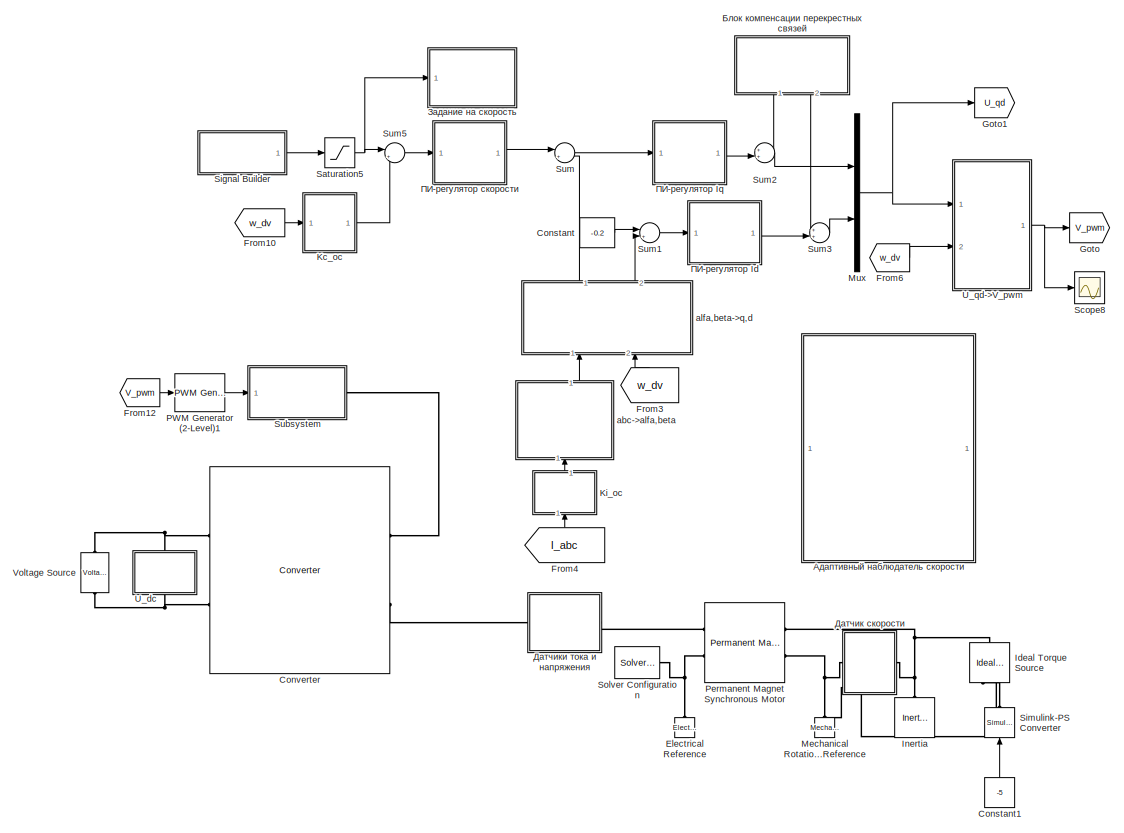
[diagram: root canvas - part 1/2, center side, full height]
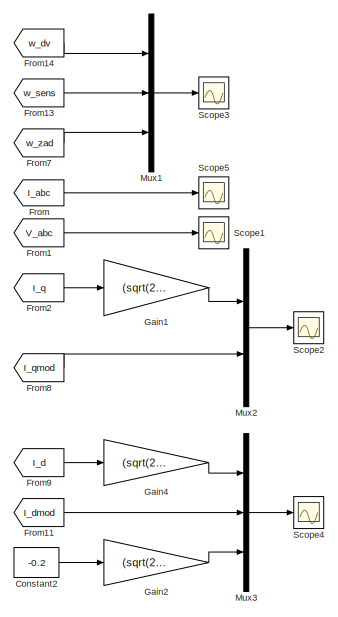
[diagram: root canvas - part 2/2, middle right region]
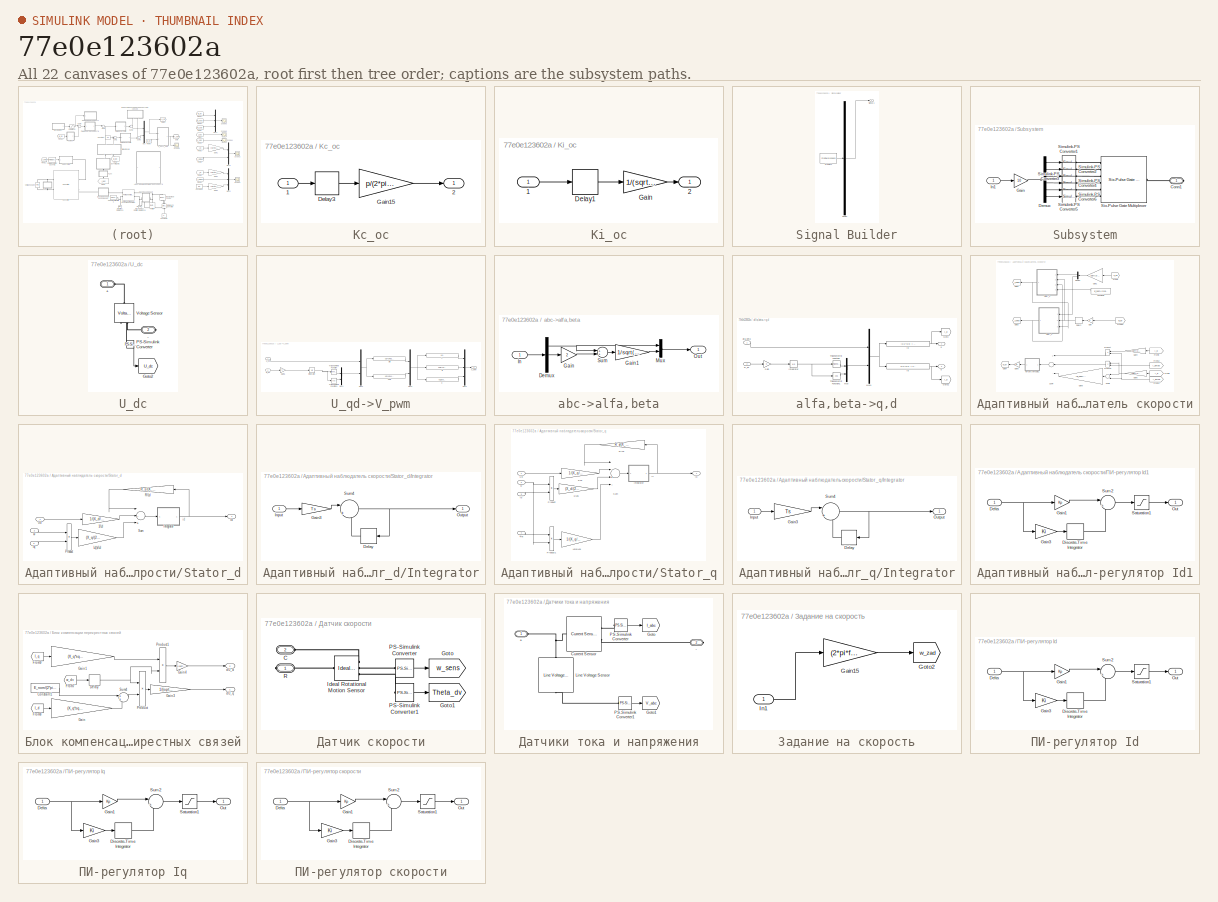
[diagram: thumbnail index - all 22 canvases of the model, root first then tree order]
MODEL slx_77e0e123602a
KIND model
CONFIG AbsTol = auto
CONFIG EnableMultiTasking = off
CONFIG FixedStep = Ts
CONFIG MaxStep = auto
CONFIG MinStep = auto
CONFIG RelTol = 1e-3
CONFIG SampleTimeConstraint = Unconstrained
CONFIG Solver = ode3
CONFIG SolverName = ode3
CONFIG StartTime = 0.0
CONFIG StopTime = 10
BLOCK [Constant] Constant
  Value = -0.2
BLOCK [Constant] Constant1
  Value = -5
BLOCK [Constant] Constant2
  Value = -0.2
BLOCK [Reference] Converter  REF=pe_lib/Semiconductors/Converter
  Ports = [0, 0, 0, 0, 0, 2, 2]
  SourceBlock = pe_lib/Semiconductors/Converter
  SourceProductBaseCode = PS
  SourceProductName = Simscape Electrical
  SourceType = Converter
BLOCK [Reference] Electrical Reference  REF=fl_lib/Electrical/Electrical Elements/Electrical Reference
  Ports = [0, 0, 0, 0, 0, 1]
  SourceBlock = fl_lib/Electrical/Electrical Elements/Electrical Reference
  SourceProductBaseCode = SS
  SourceProductName = Simscape
  SourceType = Electrical Reference
BLOCK [From] From
  GotoTag = I_abc
  TagVisibility = global
BLOCK [From] From1
  GotoTag = V_abc
  TagVisibility = global
BLOCK [From] From10
  GotoTag = w_dv
  TagVisibility = global
BLOCK [From] From11
  GotoTag = I_dmod
  TagVisibility = global
BLOCK [From] From12
  GotoTag = V_pwm
  TagVisibility = global
BLOCK [From] From13
  GotoTag = w_sens
  TagVisibility = global
BLOCK [From] From14
  GotoTag = w_dv
  TagVisibility = global
BLOCK [From] From2
  GotoTag = I_q
  TagVisibility = global
BLOCK [From] From3
  GotoTag = w_dv
  TagVisibility = global
BLOCK [From] From4
  GotoTag = I_abc
  TagVisibility = global
BLOCK [From] From6
  GotoTag = w_dv
  TagVisibility = global
BLOCK [From] From7
  GotoTag = w_zad
  TagVisibility = global
BLOCK [From] From8
  GotoTag = I_qmod
  TagVisibility = global
BLOCK [From] From9
  GotoTag = I_d
  TagVisibility = global
BLOCK [Gain] Gain1
  Gain = (sqrt(2)*I_nom)
  OutDataTypeStr = Inherit: Inherit via internal rule
  ParamDataTypeStr = Inherit: Inherit via internal rule
  SaturateOnIntegerOverflow = off
BLOCK [Gain] Gain2
  Gain = (sqrt(2)*I_nom)
  OutDataTypeStr = Inherit: Inherit via internal rule
  ParamDataTypeStr = Inherit: Inherit via internal rule
  SaturateOnIntegerOverflow = off
BLOCK [Gain] Gain4
  Gain = (sqrt(2)*I_nom)
  OutDataTypeStr = Inherit: Inherit via internal rule
  ParamDataTypeStr = Inherit: Inherit via internal rule
  SaturateOnIntegerOverflow = off
BLOCK [Goto] Goto
  GotoTag = V_pwm
  TagVisibility = global
BLOCK [Goto] Goto1
  GotoTag = U_qd
  TagVisibility = global
BLOCK [Reference] Ideal Torque Source  REF=fl_lib/Mechanical/Mechanical Sources/Ideal Torque Source
  Ports = [0, 0, 0, 0, 0, 1, 2]
  SourceBlock = fl_lib/Mechanical/Mechanical Sources/Ideal Torque Source
  SourceProductBaseCode = SS
  SourceProductName = Simscape
  SourceType = Ideal Torque Source
BLOCK [Reference] Inertia  REF=fl_lib/Mechanical/Rotational Elements/Inertia
  Ports = [0, 0, 0, 0, 0, 1]
  SourceBlock = fl_lib/Mechanical/Rotational Elements/Inertia
  SourceProductBaseCode = SS
  SourceProductName = Simscape
  SourceType = Inertia
BLOCK [SubSystem] Kc_oc
  Ports = [1, 1]
  RequestExecContextInheritance = off
BLOCK [Inport] Kc_oc/1
  IconDisplay = Port number
BLOCK [Outport] Kc_oc/2
  IconDisplay = Port number
BLOCK [Delay] Kc_oc/Delay3
  DelayLength = 1
  InitialCondition = 0
  InputPortMap = u0
  Ports = [1, 1]
BLOCK [Gain] Kc_oc/Gain15
  Gain = p/(2*pi*f_nom)
  OutDataTypeStr = Inherit: Inherit via internal rule
  ParamDataTypeStr = Inherit: Inherit via internal rule
  SaturateOnIntegerOverflow = off
BLOCK [SubSystem] Ki_oc
  Ports = [1, 1]
  RequestExecContextInheritance = off
BLOCK [Inport] Ki_oc/1
  IconDisplay = Port number
BLOCK [Outport] Ki_oc/2
  IconDisplay = Port number
BLOCK [Delay] Ki_oc/Delay1
  DelayLength = 1
  InitialCondition = 0
  InputPortMap = u0
  Ports = [1, 1]
BLOCK [Gain] Ki_oc/Gain
  Gain = 1/(sqrt(2)*I_nom)
  OutDataTypeStr = Inherit: Inherit via internal rule
  ParamDataTypeStr = Inherit: Inherit via internal rule
  SaturateOnIntegerOverflow = off
BLOCK [Reference] Mechanical Rotational Reference  REF=fl_lib/Mechanical/Rotational Elements/Mechanical
Rotational Reference
  Ports = [0, 0, 0, 0, 0, 1]
  SourceBlock = fl_lib/Mechanical/Rotational Elements/Mechanical\nRotational Reference
  SourceProductBaseCode = SS
  SourceProductName = Simscape
  SourceType = Mechanical\nRotational Reference
BLOCK [Mux] Mux
  DisplayOption = bar
  Inputs = 2
  Ports = [2, 1]
BLOCK [Mux] Mux1
  DisplayOption = bar
  Inputs = 3
  Ports = [3, 1]
BLOCK [Mux] Mux2
  DisplayOption = bar
  Inputs = 2
  Ports = [2, 1]
BLOCK [Mux] Mux3
  DisplayOption = bar
  Inputs = 3
  Ports = [3, 1]
BLOCK [Reference] PWM Generator (2-Level)1  REF=powerlib_meascontrol/Pulse & Signal
Generators/PWM Generator
(2-Level)
  Ports = [1, 1]
  SourceBlock = powerlib_meascontrol/Pulse & Signal\nGenerators/PWM Generator\n(2-Level)
  SourceProductBaseCode = PS
  SourceProductName = Simscape Electrical
  SourceType = PWM Generator (2-Level)
BLOCK [Reference] Permanent Magnet Synchronous Motor  REF=pe_lib/Machines/Permanent Magnet
Rotor/Permanent Magnet
Synchronous Motor
  Ports = [0, 0, 0, 0, 0, 2, 2]
  SourceBlock = pe_lib/Machines/Permanent Magnet\nRotor/Permanent Magnet\nSynchronous Motor
  SourceProductBaseCode = PS
  SourceProductName = Simscape Electrical
  SourceType = Permanent Magnet\nSynchronous Motor
BLOCK [Saturate] Saturation5
  InputPortMap = u0
  LowerLimit = -1
  Ports = [1, 1]
  UpperLimit = 1
BLOCK [Scope] Scope1
  Floating = off
  NumInputPorts = 1
  Ports = [1]
  ScopeSpecificationString = Simulink.scopes.TimeScopeBlockCfg('CurrentConfiguration', extmgr.ConfigurationSet(extmgr.Configuration('Core','General UI',true),extmgr.Configuration('Core','Source UI',true),extmgr.Configuration('Sources','WiredSimulink',true,'DataLoggingVariableName','ScopeData3'),extmgr.Configuration('Visuals','Time Domain',true,'SerializedDisplays',{struct('MinYLimReal','-675.07528','MaxYLimReal','675.07491','...<+1522ch>
BLOCK [Scope] Scope2
  Floating = off
  NumInputPorts = 1
  Ports = [1]
  ScopeSpecificationString = Simulink.scopes.TimeScopeBlockCfg('CurrentConfiguration', extmgr.ConfigurationSet(extmgr.Configuration('Core','General UI',true,'FigureColor',[1 1 1]),extmgr.Configuration('Core','Source UI',true),extmgr.Configuration('Sources','WiredSimulink',true,'DataLoggingVariableName','ScopeData1'),extmgr.Configuration('Visuals','Time Domain',true,'SerializedDisplays',{struct('MinYLimReal','-14.82485','MaxYL...<+1759ch>
BLOCK [Scope] Scope3
  Floating = off
  NumInputPorts = 1
  Ports = [1]
  ScopeSpecificationString = Simulink.scopes.TimeScopeBlockCfg('CurrentConfiguration', extmgr.ConfigurationSet(extmgr.Configuration('Core','General UI',true,'FigureColor',[1 1 1]),extmgr.Configuration('Core','Source UI',true),extmgr.Configuration('Sources','WiredSimulink',true,'DataLoggingVariableName','ScopeData1'),extmgr.Configuration('Visuals','Time Domain',true,'SerializedDisplays',{struct('MinYLimReal','-279.33541','MaxY...<+1839ch>
BLOCK [Scope] Scope4
  Floating = off
  NumInputPorts = 1
  Ports = [1]
  ScopeSpecificationString = Simulink.scopes.TimeScopeBlockCfg('CurrentConfiguration', extmgr.ConfigurationSet(extmgr.Configuration('Core','General UI',true,'FigureColor',[1 1 1]),extmgr.Configuration('Core','Source UI',true),extmgr.Configuration('Sources','WiredSimulink',true,'DataLoggingVariableName','ScopeData2'),extmgr.Configuration('Visuals','Time Domain',true,'SerializedDisplays',{struct('MinYLimReal','-61.41893','MaxYL...<+1751ch>
BLOCK [Scope] Scope5
  Floating = off
  NumInputPorts = 1
  Ports = [1]
  ScopeSpecificationString = Simulink.scopes.TimeScopeBlockCfg('CurrentConfiguration', extmgr.ConfigurationSet(extmgr.Configuration('Core','General UI',true,'FigureColor',[1 1 1]),extmgr.Configuration('Core','Source UI',true),extmgr.Configuration('Sources','WiredSimulink',true,'DataLoggingVariableName','ScopeData3'),extmgr.Configuration('Visuals','Time Domain',true,'SerializedDisplays',{struct('MinYLimReal','-112.36384','MaxY...<+1826ch>
BLOCK [Scope] Scope8
  Floating = off
  NumInputPorts = 1
  Ports = [1]
  ScopeSpecificationString = Simulink.scopes.TimeScopeBlockCfg('CurrentConfiguration', extmgr.ConfigurationSet(extmgr.Configuration('Core','General UI',true),extmgr.Configuration('Core','Source UI',true),extmgr.Configuration('Sources','WiredSimulink',true,'DataLoggingVariableName','ScopeData7'),extmgr.Configuration('Visuals','Time Domain',true,'SerializedDisplays',{struct('MinYLimReal','-1.02661','MaxYLimReal','0.86767','YLab...<+1475ch>
BLOCK [SubSystem] Signal Builder
  ClipboardFcn = sigbuilder_block('clipboard');
  CloseFcn = sigbuilder_block('close');
  ContinueFcn = sigbuilder_block('continue');
  CopyFcn = sigbuilder_block('copy');
  DeleteFcn = sigbuilder_block('delete');
  LoadFcn = sigbuilder_block('load');
  MaskHideContents = on
  ModelCloseFcn = sigbuilder_block('modelClose');
  NameChangeFcn = sigbuilder_block('namechange');
  OpenFcn = sigbuilder_block('open',[437.6 199.2 550.4 400 ]);
  PauseFcn = sigbuilder_block('pause');
  Ports = [0, 1]
  PreSaveFcn = sigbuilder_block('preSave');
  RequestExecContextInheritance = off
  StartFcn = sigbuilder_block('start');
  StopFcn = sigbuilder_block('stop');
  Tag = STV Subsys
BLOCK [Demux] Signal Builder/Demux
  Outputs = 1
  Ports = [1, 1]
  Tag = STV Demux
BLOCK [FromWorkspace] Signal Builder/FromWs
  SampleTime = 0
  Tag = STV FromWs
  VariableName = tuvar
  ZeroCross = on
BLOCK [Outport] Signal Builder/Signal 1
  IconDisplay = Port number
  Tag = STV Outport
BLOCK [Reference] Simulink-PS Converter  REF=nesl_utility/Simulink-PS
Converter
  Ports = [1, 0, 0, 0, 0, 0, 1]
  SourceBlock = nesl_utility/Simulink-PS\nConverter
  SourceProductBaseCode = SS
  SourceProductName = Simscape
  SourceType = Simulink-PS\nConverter
BLOCK [Reference] Solver Configuration  REF=nesl_utility/Solver
Configuration
  Ports = [0, 0, 0, 0, 0, 0, 1]
  SourceBlock = nesl_utility/Solver\nConfiguration
  SourceProductBaseCode = SS
  SourceProductName = Simscape
  SourceType = Solver\nConfiguration
BLOCK [SubSystem] Subsystem
  Ports = [1, 0, 0, 0, 0, 0, 1]
  RequestExecContextInheritance = off
BLOCK [PMIOPort] Subsystem/Conn1
  Side = Right
BLOCK [Demux] Subsystem/Demux
  DisplayOption = bar
  Outputs = 6
  Ports = [1, 6]
BLOCK [Gain] Subsystem/Gain
  Gain = 10
  OutDataTypeStr = Inherit: Inherit via internal rule
  ParamDataTypeStr = Inherit: Inherit via internal rule
  SaturateOnIntegerOverflow = off
BLOCK [Inport] Subsystem/In1
  IconDisplay = Port number
BLOCK [Reference] Subsystem/Simulink-PS Converter1  REF=nesl_utility/Simulink-PS
Converter
  Ports = [1, 0, 0, 0, 0, 0, 1]
  SourceBlock = nesl_utility/Simulink-PS\nConverter
  SourceProductBaseCode = SS
  SourceProductName = Simscape
  SourceType = Simulink-PS\nConverter
BLOCK [Reference] Subsystem/Simulink-PS Converter2  REF=nesl_utility/Simulink-PS
Converter
  Ports = [1, 0, 0, 0, 0, 0, 1]
  SourceBlock = nesl_utility/Simulink-PS\nConverter
  SourceProductBaseCode = SS
  SourceProductName = Simscape
  SourceType = Simulink-PS\nConverter
BLOCK [Reference] Subsystem/Simulink-PS Converter3  REF=nesl_utility/Simulink-PS
Converter
  Ports = [1, 0, 0, 0, 0, 0, 1]
  SourceBlock = nesl_utility/Simulink-PS\nConverter
  SourceProductBaseCode = SS
  SourceProductName = Simscape
  SourceType = Simulink-PS\nConverter
BLOCK [Reference] Subsystem/Simulink-PS Converter4  REF=nesl_utility/Simulink-PS
Converter
  Ports = [1, 0, 0, 0, 0, 0, 1]
  SourceBlock = nesl_utility/Simulink-PS\nConverter
  SourceProductBaseCode = SS
  SourceProductName = Simscape
  SourceType = Simulink-PS\nConverter
BLOCK [Reference] Subsystem/Simulink-PS Converter5  REF=nesl_utility/Simulink-PS
Converter
  Ports = [1, 0, 0, 0, 0, 0, 1]
  SourceBlock = nesl_utility/Simulink-PS\nConverter
  SourceProductBaseCode = SS
  SourceProductName = Simscape
  SourceType = Simulink-PS\nConverter
BLOCK [Reference] Subsystem/Simulink-PS Converter6  REF=nesl_utility/Simulink-PS
Converter
  Ports = [1, 0, 0, 0, 0, 0, 1]
  SourceBlock = nesl_utility/Simulink-PS\nConverter
  SourceProductBaseCode = SS
  SourceProductName = Simscape
  SourceType = Simulink-PS\nConverter
BLOCK [Reference] Subsystem/Six-Pulse Gate Multiplexer  REF=pe_lib/Semiconductors/Six-Pulse Gate
Multiplexer
  Ports = [0, 0, 0, 0, 0, 6, 1]
  SourceBlock = pe_lib/Semiconductors/Six-Pulse Gate\nMultiplexer
  SourceProductBaseCode = PS
  SourceProductName = Simscape Electrical
  SourceType = Six-Pulse Gate\nMultiplexer
BLOCK [Sum] Sum
  IconShape = round
  InputSameDT = off
  Inputs = |+-
  OutDataTypeStr = Inherit: Inherit via internal rule
  Ports = [2, 1]
  SaturateOnIntegerOverflow = off
BLOCK [Sum] Sum1
  IconShape = round
  InputSameDT = off
  Inputs = |+-
  OutDataTypeStr = Inherit: Inherit via internal rule
  Ports = [2, 1]
  SaturateOnIntegerOverflow = off
BLOCK [Sum] Sum2
  IconShape = round
  InputSameDT = off
  Inputs = ++|
  OutDataTypeStr = Inherit: Inherit via internal rule
  Ports = [2, 1]
  SaturateOnIntegerOverflow = off
BLOCK [Sum] Sum3
  IconShape = round
  InputSameDT = off
  Inputs = ++|
  OutDataTypeStr = Inherit: Inherit via internal rule
  Ports = [2, 1]
  SaturateOnIntegerOverflow = off
BLOCK [Sum] Sum5
  IconShape = round
  InputSameDT = off
  Inputs = |+-
  OutDataTypeStr = Inherit: Inherit via internal rule
  Ports = [2, 1]
  SaturateOnIntegerOverflow = off
BLOCK [SubSystem] U_dc
  Ports = [0, 0, 0, 0, 0, 1, 1]
  RequestExecContextInheritance = off
BLOCK [PMIOPort] U_dc/+ 
  Side = Left
BLOCK [PMIOPort] U_dc/- 
  Port = 2
  Side = Right
BLOCK [Goto] U_dc/Goto2
  GotoTag = U_dc
  TagVisibility = global
BLOCK [Reference] U_dc/PS-Simulink Converter  REF=nesl_utility/PS-Simulink
Converter
  Ports = [0, 1, 0, 0, 0, 1]
  SourceBlock = nesl_utility/PS-Simulink\nConverter
  SourceProductBaseCode = SS
  SourceProductName = Simscape
  SourceType = PS-Simulink\nConverter
BLOCK [Reference] U_dc/Voltage Sensor  REF=fl_lib/Electrical/Electrical Sensors/Voltage Sensor
  Ports = [0, 0, 0, 0, 0, 1, 2]
  SourceBlock = fl_lib/Electrical/Electrical Sensors/Voltage Sensor
  SourceProductBaseCode = SS
  SourceProductName = Simscape
  SourceType = Voltage Sensor
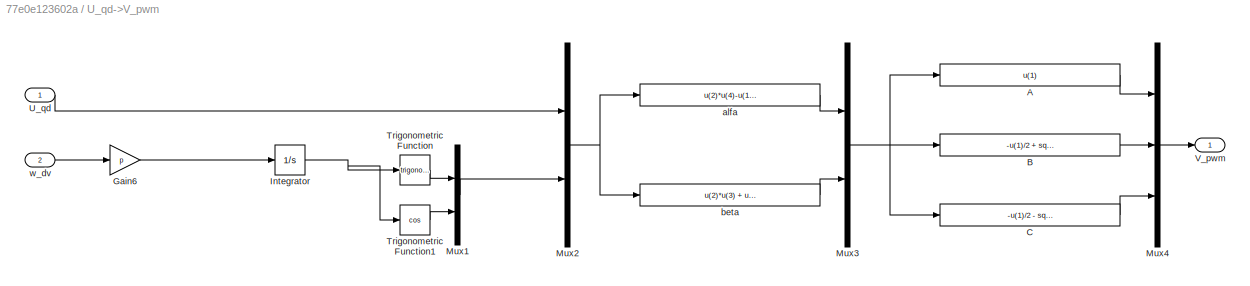
BLOCK [SubSystem] U_qd->V_pwm
  Ports = [2, 1]
  RequestExecContextInheritance = off
BLOCK [Fcn] U_qd->V_pwm/A
  Expr = u(1)
BLOCK [Fcn] U_qd->V_pwm/B
  Expr = -u(1)/2  + sqrt(3)*u(2)/2
BLOCK [Gain] U_qd->V_pwm/Gain6
  Gain = p
  OutDataTypeStr = Inherit: Inherit via internal rule
  ParamDataTypeStr = Inherit: Inherit via internal rule
  SaturateOnIntegerOverflow = off
BLOCK [Integrator] U_qd->V_pwm/Integrator
  Ports = [1, 1]
BLOCK [Mux] U_qd->V_pwm/Mux1
  DisplayOption = bar
  Inputs = 2
  Ports = [2, 1]
BLOCK [Mux] U_qd->V_pwm/Mux2
  DisplayOption = bar
  Inputs = 2
  Ports = [2, 1]
BLOCK [Mux] U_qd->V_pwm/Mux3
  DisplayOption = bar
  Inputs = 2
  Ports = [2, 1]
BLOCK [Mux] U_qd->V_pwm/Mux4
  DisplayOption = bar
  Inputs = 3
  Ports = [3, 1]
BLOCK [Trigonometry] U_qd->V_pwm/Trigonometric Function
  Ports = [1, 1]
BLOCK [Trigonometry] U_qd->V_pwm/Trigonometric Function1
  Operator = cos
  Ports = [1, 1]
BLOCK [Inport] U_qd->V_pwm/U_qd
  IconDisplay = Port number
BLOCK [Outport] U_qd->V_pwm/V_pwm
  IconDisplay = Port number
BLOCK [Fcn] U_qd->V_pwm/alfa 
  Expr = u(2)*u(4)-u(1)*u(3)
BLOCK [Fcn] U_qd->V_pwm/beta
  Expr = u(2)*u(3) + u(1)*u(4)
BLOCK [Inport] U_qd->V_pwm/w_dv
  IconDisplay = Port number
  Port = 2
BLOCK [Fcn] U_qd->V_pwm/С
  Expr = -u(1)/2  - sqrt(3)*u(2)/2
BLOCK [Reference] Voltage Source  REF=elec_lib/Sources/Voltage Source
  Ports = [0, 0, 0, 0, 0, 1, 1]
  SourceBlock = elec_lib/Sources/Voltage Source
  SourceProductBaseCode = SN
  SourceProductName = Simscape Electronics
  SourceType = Voltage Source
BLOCK [SubSystem] abc->alfa,beta
  Ports = [1, 1]
  RequestExecContextInheritance = off
  ShowPortLabels = FromPortBlockName
BLOCK [Demux] abc->alfa,beta/Demux
  DisplayOption = bar
  Outputs = 3
  Ports = [1, 3]
BLOCK [Gain] abc->alfa,beta/Gain
  Gain = 2
  OutDataTypeStr = Inherit: Inherit via internal rule
  ParamDataTypeStr = Inherit: Inherit via internal rule
  SaturateOnIntegerOverflow = off
BLOCK [Gain] abc->alfa,beta/Gain1
  Gain = 1/sqrt(3)
  OutDataTypeStr = Inherit: Inherit via internal rule
  ParamDataTypeStr = Inherit: Inherit via internal rule
  SaturateOnIntegerOverflow = off
BLOCK [Inport] abc->alfa,beta/In
  IconDisplay = Port number
BLOCK [Mux] abc->alfa,beta/Mux
  DisplayOption = bar
  Inputs = 2
  Ports = [2, 1]
BLOCK [Outport] abc->alfa,beta/Out
  IconDisplay = Port number
BLOCK [Sum] abc->alfa,beta/Sum
  InputSameDT = off
  OutDataTypeStr = Inherit: Inherit via internal rule
  Ports = [2, 1]
  SaturateOnIntegerOverflow = off
BLOCK [SubSystem] alfa,beta->q,d
  Ports = [2, 2]
  RequestExecContextInheritance = off
BLOCK [Gain] alfa,beta->q,d/Gain
  Gain = p
  OutDataTypeStr = Inherit: Inherit via internal rule
  ParamDataTypeStr = Inherit: Inherit via internal rule
  SaturateOnIntegerOverflow = off
BLOCK [Goto] alfa,beta->q,d/Goto
  GotoTag = I_q
  TagVisibility = global
BLOCK [Goto] alfa,beta->q,d/Goto1
  GotoTag = I_d
  TagVisibility = global
BLOCK [Fcn] alfa,beta->q,d/Id 
  Expr = u(1)*u(4) + u(2)*u(3)
BLOCK [Integrator] alfa,beta->q,d/Integrator
  Ports = [1, 1]
BLOCK [Fcn] alfa,beta->q,d/Iq
  Expr = -u(1)*u(3) + u(2)*u(4)
BLOCK [Mux] alfa,beta->q,d/Mux
  DisplayOption = bar
  Inputs = 2
  Ports = [2, 1]
BLOCK [Mux] alfa,beta->q,d/Mux1
  DisplayOption = bar
  Inputs = 2
  Ports = [2, 1]
BLOCK [Trigonometry] alfa,beta->q,d/Trigonometric Function
  Ports = [1, 1]
BLOCK [Trigonometry] alfa,beta->q,d/Trigonometric Function1
  Operator = cos
  Ports = [1, 1]
BLOCK [Inport] alfa,beta->q,d/alfa,beta
  IconDisplay = Port number
BLOCK [Outport] alfa,beta->q,d/d
  IconDisplay = Port number
  Port = 2
BLOCK [Outport] alfa,beta->q,d/q 
  IconDisplay = Port number
BLOCK [Inport] alfa,beta->q,d/w_dv
  IconDisplay = Port number
  Port = 2
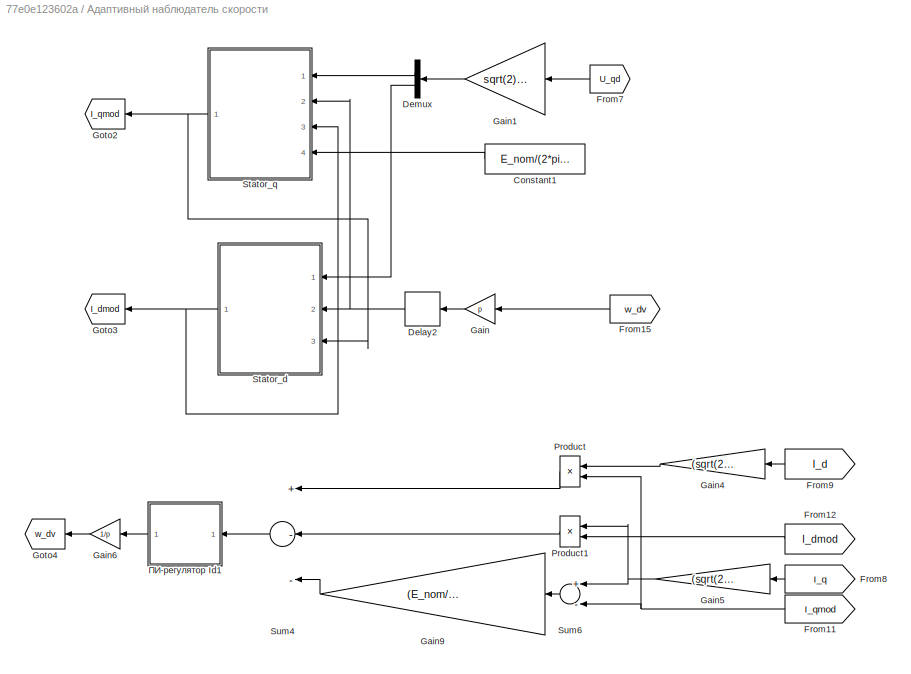
BLOCK [SubSystem] Адаптивный наблюдатель скорости
  Ports = []
  RequestExecContextInheritance = off
BLOCK [Constant] Адаптивный наблюдатель скорости/Constant1
  Value = E_nom/(2*pi*f_nom)
BLOCK [Delay] Адаптивный наблюдатель скорости/Delay2
  DelayLength = 1
  InitialCondition = 0
  InputPortMap = u0
  Ports = [1, 1]
BLOCK [Demux] Адаптивный наблюдатель скорости/Demux
  DisplayOption = bar
  Outputs = 2
  Ports = [1, 2]
BLOCK [From] Адаптивный наблюдатель скорости/From11
  GotoTag = I_qmod
  TagVisibility = global
BLOCK [From] Адаптивный наблюдатель скорости/From12
  GotoTag = I_dmod
  TagVisibility = global
BLOCK [From] Адаптивный наблюдатель скорости/From15
  GotoTag = w_dv
  TagVisibility = global
BLOCK [From] Адаптивный наблюдатель скорости/From7
  GotoTag = U_qd
  TagVisibility = global
BLOCK [From] Адаптивный наблюдатель скорости/From8
  GotoTag = I_q
  TagVisibility = global
BLOCK [From] Адаптивный наблюдатель скорости/From9
  GotoTag = I_d
  TagVisibility = global
BLOCK [Gain] Адаптивный наблюдатель скорости/Gain
  Gain = p
  OutDataTypeStr = Inherit: Inherit via internal rule
  ParamDataTypeStr = Inherit: Inherit via internal rule
  SaturateOnIntegerOverflow = off
BLOCK [Gain] Адаптивный наблюдатель скорости/Gain1
  Gain = sqrt(2)*U_nom
  OutDataTypeStr = Inherit: Inherit via internal rule
  ParamDataTypeStr = Inherit: Inherit via internal rule
  SaturateOnIntegerOverflow = off
BLOCK [Gain] Адаптивный наблюдатель скорости/Gain4
  Gain = (sqrt(2)*I_nom)
  OutDataTypeStr = Inherit: Inherit via internal rule
  ParamDataTypeStr = Inherit: Inherit via internal rule
  SaturateOnIntegerOverflow = off
BLOCK [Gain] Адаптивный наблюдатель скорости/Gain5
  Gain = (sqrt(2)*I_nom)
  OutDataTypeStr = Inherit: Inherit via internal rule
  ParamDataTypeStr = Inherit: Inherit via internal rule
  SaturateOnIntegerOverflow = off
BLOCK [Gain] Адаптивный наблюдатель скорости/Gain6
  Gain = 1/p
  OutDataTypeStr = Inherit: Inherit via internal rule
  ParamDataTypeStr = Inherit: Inherit via internal rule
  SaturateOnIntegerOverflow = off
BLOCK [Gain] Адаптивный наблюдатель скорости/Gain9
  Gain = (E_nom/(2*pi*f_nom))/(X_q/(2*pi*f_nom))
  OutDataTypeStr = Inherit: Inherit via internal rule
  ParamDataTypeStr = Inherit: Inherit via internal rule
  SaturateOnIntegerOverflow = off
BLOCK [Goto] Адаптивный наблюдатель скорости/Goto2
  GotoTag = I_qmod
  TagVisibility = global
BLOCK [Goto] Адаптивный наблюдатель скорости/Goto3
  GotoTag = I_dmod
  TagVisibility = global
BLOCK [Goto] Адаптивный наблюдатель скорости/Goto4
  GotoTag = w_dv
  TagVisibility = global
BLOCK [Product] Адаптивный наблюдатель скорости/Product
  InputSameDT = off
  OutDataTypeStr = Inherit: Inherit via internal rule
  Ports = [2, 1]
  RndMeth = Floor
  SaturateOnIntegerOverflow = off
BLOCK [Product] Адаптивный наблюдатель скорости/Product1
  InputSameDT = off
  OutDataTypeStr = Inherit: Inherit via internal rule
  Ports = [2, 1]
  RndMeth = Floor
  SaturateOnIntegerOverflow = off
BLOCK [SubSystem] Адаптивный наблюдатель скорости/Stator_d
  Ports = [3, 1]
  RequestExecContextInheritance = off
BLOCK [Gain] Адаптивный наблюдатель скорости/Stator_d/1//Ld
  Gain = 1/(X_d/(2*pi*f_nom))
  OutDataTypeStr = Inherit: Inherit via internal rule
  ParamDataTypeStr = Inherit: Inherit via internal rule
  SaturateOnIntegerOverflow = off
BLOCK [Outport] Адаптивный наблюдатель скорости/Stator_d/Id
  IconDisplay = Port number
BLOCK [SubSystem] Адаптивный наблюдатель скорости/Stator_d/Integrator
  Ports = [1, 1]
  RequestExecContextInheritance = off
BLOCK [Delay] Адаптивный наблюдатель скорости/Stator_d/Integrator/Delay
  DelayLength = 1
  InitialCondition = 0
  InputPortMap = u0
  Ports = [1, 1]
BLOCK [Gain] Адаптивный наблюдатель скорости/Stator_d/Integrator/Gain3
  Gain = Ts
  OutDataTypeStr = Inherit: Inherit via internal rule
  ParamDataTypeStr = Inherit: Inherit via internal rule
  SaturateOnIntegerOverflow = off
BLOCK [Inport] Адаптивный наблюдатель скорости/Stator_d/Integrator/Input
  IconDisplay = Port number
BLOCK [Outport] Адаптивный наблюдатель скорости/Stator_d/Integrator/Output
  IconDisplay = Port number
BLOCK [Sum] Адаптивный наблюдатель скорости/Stator_d/Integrator/Sum4
  IconShape = round
  InputSameDT = off
  Inputs = |++
  OutDataTypeStr = Inherit: Inherit via internal rule
  Ports = [2, 1]
  SaturateOnIntegerOverflow = off
BLOCK [Inport] Адаптивный наблюдатель скорости/Stator_d/Iq 
  IconDisplay = Port number
  Port = 3
BLOCK [Gain] Адаптивный наблюдатель скорости/Stator_d/Lq*p//Ld
  Gain = (X_q/(2*pi*f_nom))/(X_d/(2*pi*f_nom))
  OutDataTypeStr = Inherit: Inherit via internal rule
  ParamDataTypeStr = Inherit: Inherit via internal rule
  SaturateOnIntegerOverflow = off
BLOCK [Product] Адаптивный наблюдатель скорости/Stator_d/Product
  InputSameDT = off
  OutDataTypeStr = Inherit: Inherit via internal rule
  Ports = [2, 1]
  RndMeth = Floor
  SaturateOnIntegerOverflow = off
BLOCK [Gain] Адаптивный наблюдатель скорости/Stator_d/R//Ld
  Gain = R_s/(X_d/(2*pi*f_nom))
  OutDataTypeStr = Inherit: Inherit via internal rule
  ParamDataTypeStr = Inherit: Inherit via internal rule
  SaturateOnIntegerOverflow = off
BLOCK [Sum] Адаптивный наблюдатель скорости/Stator_d/Sum
  InputSameDT = off
  Inputs = |-++
  OutDataTypeStr = Inherit: Inherit via internal rule
  Ports = [3, 1]
  SaturateOnIntegerOverflow = off
BLOCK [Inport] Адаптивный наблюдатель скорости/Stator_d/Ud 
  IconDisplay = Port number
BLOCK [Inport] Адаптивный наблюдатель скорости/Stator_d/w 
  IconDisplay = Port number
  Port = 2
BLOCK [SubSystem] Адаптивный наблюдатель скорости/Stator_q
  Ports = [4, 1]
  RequestExecContextInheritance = off
BLOCK [Gain] Адаптивный наблюдатель скорости/Stator_q/1//Lq
  Gain = 1/(X_q/(2*pi*f_nom))
  OutDataTypeStr = Inherit: Inherit via internal rule
  ParamDataTypeStr = Inherit: Inherit via internal rule
  SaturateOnIntegerOverflow = off
BLOCK [Gain] Адаптивный наблюдатель скорости/Stator_q/1//Lq1
  Gain = (X_d/(2*pi*f_nom))/(X_q/(2*pi*f_nom))
  OutDataTypeStr = Inherit: Inherit via internal rule
  ParamDataTypeStr = Inherit: Inherit via internal rule
  SaturateOnIntegerOverflow = off
BLOCK [Inport] Адаптивный наблюдатель скорости/Stator_q/Id 
  IconDisplay = Port number
  Port = 3
BLOCK [SubSystem] Адаптивный наблюдатель скорости/Stator_q/Integrator
  Ports = [1, 1]
  RequestExecContextInheritance = off
BLOCK [Delay] Адаптивный наблюдатель скорости/Stator_q/Integrator/Delay
  DelayLength = 1
  InitialCondition = 0
  InputPortMap = u0
  Ports = [1, 1]
BLOCK [Gain] Адаптивный наблюдатель скорости/Stator_q/Integrator/Gain3
  Gain = Ts
  OutDataTypeStr = Inherit: Inherit via internal rule
  ParamDataTypeStr = Inherit: Inherit via internal rule
  SaturateOnIntegerOverflow = off
BLOCK [Inport] Адаптивный наблюдатель скорости/Stator_q/Integrator/Input
  IconDisplay = Port number
BLOCK [Outport] Адаптивный наблюдатель скорости/Stator_q/Integrator/Output
  IconDisplay = Port number
BLOCK [Sum] Адаптивный наблюдатель скорости/Stator_q/Integrator/Sum4
  IconShape = round
  InputSameDT = off
  Inputs = |++
  OutDataTypeStr = Inherit: Inherit via internal rule
  Ports = [2, 1]
  SaturateOnIntegerOverflow = off
BLOCK [Outport] Адаптивный наблюдатель скорости/Stator_q/Iq
  IconDisplay = Port number
BLOCK [Gain] Адаптивный наблюдатель скорости/Stator_q/Ld*p//Lq1
  Gain = 1/(X_q/(2*pi*f_nom))
  OutDataTypeStr = Inherit: Inherit via internal rule
  ParamDataTypeStr = Inherit: Inherit via internal rule
  SaturateOnIntegerOverflow = off
BLOCK [Product] Адаптивный наблюдатель скорости/Stator_q/Product
  InputSameDT = off
  OutDataTypeStr = Inherit: Inherit via internal rule
  Ports = [2, 1]
  RndMeth = Floor
  SaturateOnIntegerOverflow = off
BLOCK [Product] Адаптивный наблюдатель скорости/Stator_q/Product1
  InputSameDT = off
  OutDataTypeStr = Inherit: Inherit via internal rule
  Ports = [2, 1]
  RndMeth = Floor
  SaturateOnIntegerOverflow = off
BLOCK [Gain] Адаптивный наблюдатель скорости/Stator_q/R//Lq
  Gain = R_s/(X_q/(2*pi*f_nom))
  OutDataTypeStr = Inherit: Inherit via internal rule
  ParamDataTypeStr = Inherit: Inherit via internal rule
  SaturateOnIntegerOverflow = off
BLOCK [Sum] Адаптивный наблюдатель скорости/Stator_q/Sum
  InputSameDT = off
  Inputs = |-+--
  OutDataTypeStr = Inherit: Inherit via internal rule
  Ports = [4, 1]
  SaturateOnIntegerOverflow = off
BLOCK [Inport] Адаптивный наблюдатель скорости/Stator_q/Uq 
  IconDisplay = Port number
BLOCK [Inport] Адаптивный наблюдатель скорости/Stator_q/w 
  IconDisplay = Port number
  Port = 2
BLOCK [Inport] Адаптивный наблюдатель скорости/Stator_q/Фм
  IconDisplay = Port number
  Port = 4
BLOCK [Sum] Адаптивный наблюдатель скорости/Sum4
  InputSameDT = off
  Inputs = +--
  OutDataTypeStr = Inherit: Inherit via internal rule
  Ports = [3, 1]
  SaturateOnIntegerOverflow = off
BLOCK [Sum] Адаптивный наблюдатель скорости/Sum6
  InputSameDT = off
  Inputs = +-
  OutDataTypeStr = Inherit: Inherit via internal rule
  Ports = [2, 1]
  SaturateOnIntegerOverflow = off
BLOCK [SubSystem] Адаптивный наблюдатель скорости/ПИ-регулятор Id1
  Ports = [1, 1]
  RequestExecContextInheritance = off
BLOCK [Inport] Адаптивный наблюдатель скорости/ПИ-регулятор Id1/Delta
  IconDisplay = Port number
BLOCK [DiscreteIntegrator] Адаптивный наблюдатель скорости/ПИ-регулятор Id1/Discrete-Time Integrator
  ICPrevOutput = DiscIntNeverNeededParam
  ICPrevScaledInput = DiscIntNeverNeededParam
  InitialConditionSetting = Auto
  LimitOutput = on
  LowerSaturationLimit = Min
  Ports = [1, 1]
  SampleTime = -1
  UpperSaturationLimit = Max
BLOCK [Gain] Адаптивный наблюдатель скорости/ПИ-регулятор Id1/Gain1
  Gain = Kp
  OutDataTypeStr = Inherit: Inherit via internal rule
  ParamDataTypeStr = Inherit: Inherit via internal rule
  SaturateOnIntegerOverflow = off
BLOCK [Gain] Адаптивный наблюдатель скорости/ПИ-регулятор Id1/Gain3
  Gain = Ki
  OutDataTypeStr = Inherit: Inherit via internal rule
  ParamDataTypeStr = Inherit: Inherit via internal rule
  SaturateOnIntegerOverflow = off
BLOCK [Outport] Адаптивный наблюдатель скорости/ПИ-регулятор Id1/Out
  IconDisplay = Port number
BLOCK [Saturate] Адаптивный наблюдатель скорости/ПИ-регулятор Id1/Saturation1
  InputPortMap = u0
  LowerLimit = Min
  Ports = [1, 1]
  UpperLimit = Max
BLOCK [Sum] Адаптивный наблюдатель скорости/ПИ-регулятор Id1/Sum2
  IconShape = round
  InputSameDT = off
  Inputs = |++
  OutDataTypeStr = Inherit: Inherit via internal rule
  Ports = [2, 1]
  SaturateOnIntegerOverflow = off
BLOCK [SubSystem] Блок компенсации перекрестных связей
  Ports = [0, 2]
  RequestExecContextInheritance = off
BLOCK [Constant] Блок компенсации перекрестных связей/Constant1
  Value = E_nom/(2*pi*f_nom)
BLOCK [Delay] Блок компенсации перекрестных связей/Delay
  DelayLength = 1
  InitialCondition = 0
  InputPortMap = u0
  Ports = [1, 1]
BLOCK [From] Блок компенсации перекрестных связей/From7
  GotoTag = w_dv
  TagVisibility = global
BLOCK [From] Блок компенсации перекрестных связей/From8
  GotoTag = I_d
  TagVisibility = global
BLOCK [From] Блок компенсации перекрестных связей/From9
  GotoTag = I_q
  TagVisibility = global
BLOCK [Gain] Блок компенсации перекрестных связей/Gain
  Gain = (X_q*sqrt(2)*I_nom)/(2*pi*f_nom)
  OutDataTypeStr = Inherit: Inherit via internal rule
  ParamDataTypeStr = Inherit: Inherit via internal rule
  SaturateOnIntegerOverflow = off
BLOCK [Gain] Блок компенсации перекрестных связей/Gain1
  Gain = (X_q*sqrt(2)*I_nom)/(2*pi*f_nom)
  OutDataTypeStr = Inherit: Inherit via internal rule
  ParamDataTypeStr = Inherit: Inherit via internal rule
  SaturateOnIntegerOverflow = off
BLOCK [Gain] Блок компенсации перекрестных связей/Gain3
  Gain = 1/(sqrt(2)*U_nom)
  OutDataTypeStr = Inherit: Inherit via internal rule
  ParamDataTypeStr = Inherit: Inherit via internal rule
  SaturateOnIntegerOverflow = off
BLOCK [Gain] Блок компенсации перекрестных связей/Gain4
  Gain = 2/(sqrt(2)*U_nom)
  OutDataTypeStr = Inherit: Inherit via internal rule
  ParamDataTypeStr = Inherit: Inherit via internal rule
  SaturateOnIntegerOverflow = off
BLOCK [Product] Блок компенсации перекрестных связей/Product
  InputSameDT = off
  OutDataTypeStr = Inherit: Inherit via internal rule
  Ports = [2, 1]
  RndMeth = Floor
  SaturateOnIntegerOverflow = off
BLOCK [Product] Блок компенсации перекрестных связей/Product1
  InputSameDT = off
  OutDataTypeStr = Inherit: Inherit via internal rule
  Ports = [2, 1]
  RndMeth = Floor
  SaturateOnIntegerOverflow = off
BLOCK [Sum] Блок компенсации перекрестных связей/Sum4
  IconShape = round
  InputSameDT = off
  OutDataTypeStr = Inherit: Inherit via internal rule
  Ports = [2, 1]
  SaturateOnIntegerOverflow = off
BLOCK [Outport] Блок компенсации перекрестных связей/dU_d
  IconDisplay = Port number
  Port = 2
BLOCK [Outport] Блок компенсации перекрестных связей/dU_q
  IconDisplay = Port number
BLOCK [SubSystem] Датчик скорости
  Ports = [0, 0, 0, 0, 0, 1, 1]
  RequestExecContextInheritance = off
BLOCK [PMIOPort] Датчик скорости/C
  Port = 2
  Side = Left
BLOCK [Goto] Датчик скорости/Goto
  GotoTag = w_sens
  TagVisibility = global
BLOCK [Goto] Датчик скорости/Goto1
  GotoTag = Theta_dv
  TagVisibility = global
BLOCK [Reference] Датчик скорости/Ideal Rotational Motion Sensor  REF=fl_lib/Mechanical/Mechanical Sensors/Ideal Rotational
Motion Sensor
  Ports = [0, 0, 0, 0, 0, 1, 3]
  SourceBlock = fl_lib/Mechanical/Mechanical Sensors/Ideal Rotational\nMotion Sensor
  SourceProductBaseCode = SS
  SourceProductName = Simscape
  SourceType = Ideal Rotational\nMotion Sensor
BLOCK [Reference] Датчик скорости/PS-Simulink Converter  REF=nesl_utility/PS-Simulink
Converter
  Ports = [0, 1, 0, 0, 0, 1]
  SourceBlock = nesl_utility/PS-Simulink\nConverter
  SourceProductBaseCode = SS
  SourceProductName = Simscape
  SourceType = PS-Simulink\nConverter
BLOCK [Reference] Датчик скорости/PS-Simulink Converter1  REF=nesl_utility/PS-Simulink
Converter
  Ports = [0, 1, 0, 0, 0, 1]
  SourceBlock = nesl_utility/PS-Simulink\nConverter
  SourceProductBaseCode = SS
  SourceProductName = Simscape
  SourceType = PS-Simulink\nConverter
BLOCK [PMIOPort] Датчик скорости/R
  Side = Right
BLOCK [SubSystem] Датчики тока и напряжения
  Ports = [0, 0, 0, 0, 0, 1, 1]
  RequestExecContextInheritance = off
BLOCK [PMIOPort] Датчики тока и напряжения/+
  Side = Left
BLOCK [PMIOPort] Датчики тока и напряжения/-
  Port = 2
  Side = Right
BLOCK [Reference] Датчики тока и напряжения/Current Sensor  REF=pe_lib/Sensors/Current Sensor
  Ports = [0, 0, 0, 0, 0, 1, 2]
  SourceBlock = pe_lib/Sensors/Current Sensor
  SourceProductBaseCode = PS
  SourceProductName = Simscape Electrical
  SourceType = Current Sensor
BLOCK [Goto] Датчики тока и напряжения/Goto
  GotoTag = I_abc
  TagVisibility = global
BLOCK [Goto] Датчики тока и напряжения/Goto1
  GotoTag = V_abc
  TagVisibility = global
BLOCK [Reference] Датчики тока и напряжения/Line Voltage Sensor  REF=pe_lib/Sensors/Line Voltage Sensor
  Ports = [0, 0, 0, 0, 0, 1, 1]
  SourceBlock = pe_lib/Sensors/Line Voltage Sensor
  SourceProductBaseCode = PS
  SourceProductName = Simscape Electrical
  SourceType = Line Voltage Sensor
BLOCK [Reference] Датчики тока и напряжения/PS-Simulink Converter  REF=nesl_utility/PS-Simulink
Converter
  Ports = [0, 1, 0, 0, 0, 1]
  SourceBlock = nesl_utility/PS-Simulink\nConverter
  SourceProductBaseCode = SS
  SourceProductName = Simscape
  SourceType = PS-Simulink\nConverter
BLOCK [Reference] Датчики тока и напряжения/PS-Simulink Converter1  REF=nesl_utility/PS-Simulink
Converter
  Ports = [0, 1, 0, 0, 0, 1]
  SourceBlock = nesl_utility/PS-Simulink\nConverter
  SourceProductBaseCode = SS
  SourceProductName = Simscape
  SourceType = PS-Simulink\nConverter
BLOCK [SubSystem] Задание на скорость
  Ports = [1]
  RequestExecContextInheritance = off
BLOCK [Gain] Задание на скорость/Gain15
  Gain = (2*pi*f_nom)/p
  OutDataTypeStr = Inherit: Inherit via internal rule
  ParamDataTypeStr = Inherit: Inherit via internal rule
  SaturateOnIntegerOverflow = off
BLOCK [Goto] Задание на скорость/Goto2
  GotoTag = w_zad
  TagVisibility = global
BLOCK [Inport] Задание на скорость/In1
  IconDisplay = Port number
BLOCK [SubSystem] ПИ-регулятор Id
  Ports = [1, 1]
  RequestExecContextInheritance = off
BLOCK [Inport] ПИ-регулятор Id/Delta
  IconDisplay = Port number
BLOCK [DiscreteIntegrator] ПИ-регулятор Id/Discrete-Time Integrator
  ICPrevOutput = DiscIntNeverNeededParam
  ICPrevScaledInput = DiscIntNeverNeededParam
  InitialConditionSetting = Auto
  LimitOutput = on
  LowerSaturationLimit = Min
  Ports = [1, 1]
  SampleTime = -1
  UpperSaturationLimit = Max
BLOCK [Gain] ПИ-регулятор Id/Gain1
  Gain = Kp
  OutDataTypeStr = Inherit: Inherit via internal rule
  ParamDataTypeStr = Inherit: Inherit via internal rule
  SaturateOnIntegerOverflow = off
BLOCK [Gain] ПИ-регулятор Id/Gain3
  Gain = Ki
  OutDataTypeStr = Inherit: Inherit via internal rule
  ParamDataTypeStr = Inherit: Inherit via internal rule
  SaturateOnIntegerOverflow = off
BLOCK [Outport] ПИ-регулятор Id/Out
  IconDisplay = Port number
BLOCK [Saturate] ПИ-регулятор Id/Saturation1
  InputPortMap = u0
  LowerLimit = Min
  Ports = [1, 1]
  UpperLimit = Max
BLOCK [Sum] ПИ-регулятор Id/Sum2
  IconShape = round
  InputSameDT = off
  Inputs = |++
  OutDataTypeStr = Inherit: Inherit via internal rule
  Ports = [2, 1]
  SaturateOnIntegerOverflow = off
BLOCK [SubSystem] ПИ-регулятор Iq
  Ports = [1, 1]
  RequestExecContextInheritance = off
BLOCK [Inport] ПИ-регулятор Iq/Delta
  IconDisplay = Port number
BLOCK [DiscreteIntegrator] ПИ-регулятор Iq/Discrete-Time Integrator
  ICPrevOutput = DiscIntNeverNeededParam
  ICPrevScaledInput = DiscIntNeverNeededParam
  InitialConditionSetting = Auto
  LimitOutput = on
  LowerSaturationLimit = Min
  Ports = [1, 1]
  SampleTime = -1
  UpperSaturationLimit = Max
BLOCK [Gain] ПИ-регулятор Iq/Gain1
  Gain = Kp
  OutDataTypeStr = Inherit: Inherit via internal rule
  ParamDataTypeStr = Inherit: Inherit via internal rule
  SaturateOnIntegerOverflow = off
BLOCK [Gain] ПИ-регулятор Iq/Gain3
  Gain = Ki
  OutDataTypeStr = Inherit: Inherit via internal rule
  ParamDataTypeStr = Inherit: Inherit via internal rule
  SaturateOnIntegerOverflow = off
BLOCK [Outport] ПИ-регулятор Iq/Out
  IconDisplay = Port number
BLOCK [Saturate] ПИ-регулятор Iq/Saturation1
  InputPortMap = u0
  LowerLimit = Min
  Ports = [1, 1]
  UpperLimit = Max
BLOCK [Sum] ПИ-регулятор Iq/Sum2
  IconShape = round
  InputSameDT = off
  Inputs = |++
  OutDataTypeStr = Inherit: Inherit via internal rule
  Ports = [2, 1]
  SaturateOnIntegerOverflow = off
BLOCK [SubSystem] ПИ-регулятор скорости
  Ports = [1, 1]
  RequestExecContextInheritance = off
BLOCK [Inport] ПИ-регулятор скорости/Delta
  IconDisplay = Port number
BLOCK [DiscreteIntegrator] ПИ-регулятор скорости/Discrete-Time Integrator
  ICPrevOutput = DiscIntNeverNeededParam
  ICPrevScaledInput = DiscIntNeverNeededParam
  InitialConditionSetting = Auto
  LimitOutput = on
  LowerSaturationLimit = Min
  Ports = [1, 1]
  SampleTime = Ts
  UpperSaturationLimit = Max
BLOCK [Gain] ПИ-регулятор скорости/Gain1
  Gain = Kp
  OutDataTypeStr = Inherit: Inherit via internal rule
  ParamDataTypeStr = Inherit: Inherit via internal rule
  SaturateOnIntegerOverflow = off
BLOCK [Gain] ПИ-регулятор скорости/Gain3
  Gain = Ki
  OutDataTypeStr = Inherit: Inherit via internal rule
  ParamDataTypeStr = Inherit: Inherit via internal rule
  SaturateOnIntegerOverflow = off
BLOCK [Outport] ПИ-регулятор скорости/Out
  IconDisplay = Port number
BLOCK [Saturate] ПИ-регулятор скорости/Saturation1
  InputPortMap = u0
  LowerLimit = Min
  Ports = [1, 1]
  UpperLimit = Max
BLOCK [Sum] ПИ-регулятор скорости/Sum2
  IconShape = round
  InputSameDT = off
  Inputs = |++
  OutDataTypeStr = Inherit: Inherit via internal rule
  Ports = [2, 1]
  SaturateOnIntegerOverflow = off
ANNOTATION Адаптивный наблюдатель скорости/Stator_d: id
ANNOTATION Адаптивный наблюдатель скорости/Stator_q: id
LINE Constant1:1 -> Simulink-PS Converter:1
LINE Constant2:1 -> Gain2:1
LINE Constant:1 -> Sum1:1
LINE From10:1 -> Kc_oc:1
LINE From11:1 -> Mux3:2
LINE From12:1 -> PWM Generator (2-Level)1:1
LINE From13:1 -> Mux1:2
LINE From14:1 -> Mux1:1
LINE From1:1 -> Scope1:1
LINE From2:1 -> Gain1:1
LINE From3:1 -> alfa,beta->q,d:2
LINE From4:1 -> Ki_oc:1
LINE From6:1 -> U_qd->V_pwm:2
LINE From7:1 -> Mux1:3
LINE From8:1 -> Mux2:2
LINE From9:1 -> Gain4:1
LINE From:1 -> Scope5:1
LINE Gain1:1 -> Mux2:1
LINE Gain2:1 -> Mux3:3
LINE Gain4:1 -> Mux3:1
LINE Kc_oc/1:1 -> Kc_oc/Delay3:1
LINE Kc_oc/Delay3:1 -> Kc_oc/Gain15:1
LINE Kc_oc/Gain15:1 -> Kc_oc/2:1
LINE Kc_oc:1 -> Sum5:2
LINE Ki_oc/1:1 -> Ki_oc/Delay1:1
LINE Ki_oc/Delay1:1 -> Ki_oc/Gain:1
LINE Ki_oc/Gain:1 -> Ki_oc/2:1
LINE Ki_oc:1 -> abc->alfa,beta:1
LINE Mux1:1 -> Scope3:1
LINE Mux2:1 -> Scope2:1
LINE Mux3:1 -> Scope4:1
NET Mux:1 -> Goto1:1, U_qd->V_pwm:1
LINE PWM Generator (2-Level)1:1 -> Subsystem:1
NET Saturation5:1 -> Sum5:1, Задание на скорость:1
LINE Signal Builder:1 -> Saturation5:1
LINE Subsystem/Demux:1 -> Subsystem/Simulink-PS Converter1:1
LINE Subsystem/Demux:2 -> Subsystem/Simulink-PS Converter2:1
LINE Subsystem/Demux:3 -> Subsystem/Simulink-PS Converter3:1
LINE Subsystem/Demux:4 -> Subsystem/Simulink-PS Converter4:1
LINE Subsystem/Demux:5 -> Subsystem/Simulink-PS Converter5:1
LINE Subsystem/Demux:6 -> Subsystem/Simulink-PS Converter6:1
LINE Subsystem/Gain:1 -> Subsystem/Demux:1
LINE Subsystem/In1:1 -> Subsystem/Gain:1
LINE Sum1:1 -> ПИ-регулятор Id:1
LINE Sum2:1 -> Mux:1
LINE Sum3:1 -> Mux:2
LINE Sum5:1 -> ПИ-регулятор скорости:1
LINE Sum:1 -> ПИ-регулятор Iq:1
LINE U_dc/PS-Simulink Converter:1 -> U_dc/Goto2:1
LINE U_qd->V_pwm/A:1 -> U_qd->V_pwm/Mux4:1
LINE U_qd->V_pwm/B:1 -> U_qd->V_pwm/Mux4:2
LINE U_qd->V_pwm/Gain6:1 -> U_qd->V_pwm/Integrator:1
NET U_qd->V_pwm/Integrator:1 -> U_qd->V_pwm/Trigonometric Function1:1, U_qd->V_pwm/Trigonometric Function:1
LINE U_qd->V_pwm/Mux1:1 -> U_qd->V_pwm/Mux2:2
NET U_qd->V_pwm/Mux2:1 -> U_qd->V_pwm/alfa :1, U_qd->V_pwm/beta:1
NET U_qd->V_pwm/Mux3:1 -> U_qd->V_pwm/A:1, U_qd->V_pwm/B:1, U_qd->V_pwm/С:1
LINE U_qd->V_pwm/Mux4:1 -> U_qd->V_pwm/V_pwm:1
LINE U_qd->V_pwm/Trigonometric Function1:1 -> U_qd->V_pwm/Mux1:2
LINE U_qd->V_pwm/Trigonometric Function:1 -> U_qd->V_pwm/Mux1:1
LINE U_qd->V_pwm/U_qd:1 -> U_qd->V_pwm/Mux2:1
LINE U_qd->V_pwm/alfa :1 -> U_qd->V_pwm/Mux3:1
LINE U_qd->V_pwm/beta:1 -> U_qd->V_pwm/Mux3:2
LINE U_qd->V_pwm/w_dv:1 -> U_qd->V_pwm/Gain6:1
LINE U_qd->V_pwm/С:1 -> U_qd->V_pwm/Mux4:3
NET U_qd->V_pwm:1 -> Goto:1, Scope8:1
NET abc->alfa,beta/Demux:1 -> abc->alfa,beta/Mux:1, abc->alfa,beta/Sum:1
LINE abc->alfa,beta/Demux:2 -> abc->alfa,beta/Gain:1
LINE abc->alfa,beta/Gain1:1 -> abc->alfa,beta/Mux:2
LINE abc->alfa,beta/Gain:1 -> abc->alfa,beta/Sum:2
LINE abc->alfa,beta/In:1 -> abc->alfa,beta/Demux:1
LINE abc->alfa,beta/Mux:1 -> abc->alfa,beta/Out:1
LINE abc->alfa,beta/Sum:1 -> abc->alfa,beta/Gain1:1
LINE abc->alfa,beta:1 -> alfa,beta->q,d:1
LINE alfa,beta->q,d/Gain:1 -> alfa,beta->q,d/Integrator:1
NET alfa,beta->q,d/Id :1 -> alfa,beta->q,d/Goto1:1, alfa,beta->q,d/d:1
NET alfa,beta->q,d/Integrator:1 -> alfa,beta->q,d/Trigonometric Function1:1, alfa,beta->q,d/Trigonometric Function:1
NET alfa,beta->q,d/Iq:1 -> alfa,beta->q,d/Goto:1, alfa,beta->q,d/q :1
NET alfa,beta->q,d/Mux1:1 -> alfa,beta->q,d/Id :1, alfa,beta->q,d/Iq:1
LINE alfa,beta->q,d/Mux:1 -> alfa,beta->q,d/Mux1:2
LINE alfa,beta->q,d/Trigonometric Function1:1 -> alfa,beta->q,d/Mux:2
LINE alfa,beta->q,d/Trigonometric Function:1 -> alfa,beta->q,d/Mux:1
LINE alfa,beta->q,d/alfa,beta:1 -> alfa,beta->q,d/Mux1:1
LINE alfa,beta->q,d/w_dv:1 -> alfa,beta->q,d/Gain:1
LINE alfa,beta->q,d:1 -> Sum:2
LINE alfa,beta->q,d:2 -> Sum1:2
LINE Адаптивный наблюдатель скорости/Constant1:1 -> Адаптивный наблюдатель скорости/Stator_q:4
NET Адаптивный наблюдатель скорости/Delay2:1 -> Адаптивный наблюдатель скорости/Stator_d:2, Адаптивный наблюдатель скорости/Stator_q:2
LINE Адаптивный наблюдатель скорости/Demux:1 -> Адаптивный наблюдатель скорости/Stator_q:1
LINE Адаптивный наблюдатель скорости/Demux:2 -> Адаптивный наблюдатель скорости/Stator_d:1
NET Адаптивный наблюдатель скорости/From11:1 -> Адаптивный наблюдатель скорости/Product:2, Адаптивный наблюдатель скорости/Sum6:2
LINE Адаптивный наблюдатель скорости/From12:1 -> Адаптивный наблюдатель скорости/Product1:2
LINE Адаптивный наблюдатель скорости/From15:1 -> Адаптивный наблюдатель скорости/Gain:1
LINE Адаптивный наблюдатель скорости/From7:1 -> Адаптивный наблюдатель скорости/Gain1:1
LINE Адаптивный наблюдатель скорости/From8:1 -> Адаптивный наблюдатель скорости/Gain5:1
LINE Адаптивный наблюдатель скорости/From9:1 -> Адаптивный наблюдатель скорости/Gain4:1
LINE Адаптивный наблюдатель скорости/Gain1:1 -> Адаптивный наблюдатель скорости/Demux:1
LINE Адаптивный наблюдатель скорости/Gain4:1 -> Адаптивный наблюдатель скорости/Product:1
NET Адаптивный наблюдатель скорости/Gain5:1 -> Адаптивный наблюдатель скорости/Product1:1, Адаптивный наблюдатель скорости/Sum6:1
LINE Адаптивный наблюдатель скорости/Gain6:1 -> Адаптивный наблюдатель скорости/Goto4:1
LINE Адаптивный наблюдатель скорости/Gain9:1 -> Адаптивный наблюдатель скорости/Sum4:3
LINE Адаптивный наблюдатель скорости/Gain:1 -> Адаптивный наблюдатель скорости/Delay2:1
LINE Адаптивный наблюдатель скорости/Product1:1 -> Адаптивный наблюдатель скорости/Sum4:2
LINE Адаптивный наблюдатель скорости/Product:1 -> Адаптивный наблюдатель скорости/Sum4:1
LINE Адаптивный наблюдатель скорости/Stator_d/1//Ld:1 -> Адаптивный наблюдатель скорости/Stator_d/Sum:2
LINE Адаптивный наблюдатель скорости/Stator_d/Integrator/Delay:1 -> Адаптивный наблюдатель скорости/Stator_d/Integrator/Sum4:2
LINE Адаптивный наблюдатель скорости/Stator_d/Integrator/Gain3:1 -> Адаптивный наблюдатель скорости/Stator_d/Integrator/Sum4:1
LINE Адаптивный наблюдатель скорости/Stator_d/Integrator/Input:1 -> Адаптивный наблюдатель скорости/Stator_d/Integrator/Gain3:1
NET Адаптивный наблюдатель скорости/Stator_d/Integrator/Sum4:1 -> Адаптивный наблюдатель скорости/Stator_d/Integrator/Delay:1, Адаптивный наблюдатель скорости/Stator_d/Integrator/Output:1
NET Адаптивный наблюдатель скорости/Stator_d/Integrator:1 -> Адаптивный наблюдатель скорости/Stator_d/Id:1, Адаптивный наблюдатель скорости/Stator_d/R//Ld:1
LINE Адаптивный наблюдатель скорости/Stator_d/Iq :1 -> Адаптивный наблюдатель скорости/Stator_d/Product:2
LINE Адаптивный наблюдатель скорости/Stator_d/Lq*p//Ld:1 -> Адаптивный наблюдатель скорости/Stator_d/Sum:3
LINE Адаптивный наблюдатель скорости/Stator_d/Product:1 -> Адаптивный наблюдатель скорости/Stator_d/Lq*p//Ld:1
LINE Адаптивный наблюдатель скорости/Stator_d/R//Ld:1 -> Адаптивный наблюдатель скорости/Stator_d/Sum:1
LINE Адаптивный наблюдатель скорости/Stator_d/Sum:1 -> Адаптивный наблюдатель скорости/Stator_d/Integrator:1
LINE Адаптивный наблюдатель скорости/Stator_d/Ud :1 -> Адаптивный наблюдатель скорости/Stator_d/1//Ld:1
LINE Адаптивный наблюдатель скорости/Stator_d/w :1 -> Адаптивный наблюдатель скорости/Stator_d/Product:1
NET Адаптивный наблюдатель скорости/Stator_d:1 -> Адаптивный наблюдатель скорости/Goto3:1, Адаптивный наблюдатель скорости/Stator_q:3
LINE Адаптивный наблюдатель скорости/Stator_q/1//Lq1:1 -> Адаптивный наблюдатель скорости/Stator_q/Sum:3
LINE Адаптивный наблюдатель скорости/Stator_q/1//Lq:1 -> Адаптивный наблюдатель скорости/Stator_q/Sum:2
LINE Адаптивный наблюдатель скорости/Stator_q/Id :1 -> Адаптивный наблюдатель скорости/Stator_q/Product:2
LINE Адаптивный наблюдатель скорости/Stator_q/Integrator/Delay:1 -> Адаптивный наблюдатель скорости/Stator_q/Integrator/Sum4:2
LINE Адаптивный наблюдатель скорости/Stator_q/Integrator/Gain3:1 -> Адаптивный наблюдатель скорости/Stator_q/Integrator/Sum4:1
LINE Адаптивный наблюдатель скорости/Stator_q/Integrator/Input:1 -> Адаптивный наблюдатель скорости/Stator_q/Integrator/Gain3:1
NET Адаптивный наблюдатель скорости/Stator_q/Integrator/Sum4:1 -> Адаптивный наблюдатель скорости/Stator_q/Integrator/Delay:1, Адаптивный наблюдатель скорости/Stator_q/Integrator/Output:1
NET Адаптивный наблюдатель скорости/Stator_q/Integrator:1 -> Адаптивный наблюдатель скорости/Stator_q/Iq:1, Адаптивный наблюдатель скорости/Stator_q/R//Lq:1
LINE Адаптивный наблюдатель скорости/Stator_q/Ld*p//Lq1:1 -> Адаптивный наблюдатель скорости/Stator_q/Sum:4
LINE Адаптивный наблюдатель скорости/Stator_q/Product1:1 -> Адаптивный наблюдатель скорости/Stator_q/Ld*p//Lq1:1
LINE Адаптивный наблюдатель скорости/Stator_q/Product:1 -> Адаптивный наблюдатель скорости/Stator_q/1//Lq1:1
LINE Адаптивный наблюдатель скорости/Stator_q/R//Lq:1 -> Адаптивный наблюдатель скорости/Stator_q/Sum:1
LINE Адаптивный наблюдатель скорости/Stator_q/Sum:1 -> Адаптивный наблюдатель скорости/Stator_q/Integrator:1
LINE Адаптивный наблюдатель скорости/Stator_q/Uq :1 -> Адаптивный наблюдатель скорости/Stator_q/1//Lq:1
NET Адаптивный наблюдатель скорости/Stator_q/w :1 -> Адаптивный наблюдатель скорости/Stator_q/Product1:2, Адаптивный наблюдатель скорости/Stator_q/Product:1
LINE Адаптивный наблюдатель скорости/Stator_q/Фм:1 -> Адаптивный наблюдатель скорости/Stator_q/Product1:1
NET Адаптивный наблюдатель скорости/Stator_q:1 -> Адаптивный наблюдатель скорости/Goto2:1, Адаптивный наблюдатель скорости/Stator_d:3
LINE Адаптивный наблюдатель скорости/Sum4:1 -> Адаптивный наблюдатель скорости/ПИ-регулятор Id1:1
LINE Адаптивный наблюдатель скорости/Sum6:1 -> Адаптивный наблюдатель скорости/Gain9:1
NET Адаптивный наблюдатель скорости/ПИ-регулятор Id1/Delta:1 -> Адаптивный наблюдатель скорости/ПИ-регулятор Id1/Gain1:1, Адаптивный наблюдатель скорости/ПИ-регулятор Id1/Gain3:1
LINE Адаптивный наблюдатель скорости/ПИ-регулятор Id1/Discrete-Time Integrator:1 -> Адаптивный наблюдатель скорости/ПИ-регулятор Id1/Sum2:2
LINE Адаптивный наблюдатель скорости/ПИ-регулятор Id1/Gain1:1 -> Адаптивный наблюдатель скорости/ПИ-регулятор Id1/Sum2:1
LINE Адаптивный наблюдатель скорости/ПИ-регулятор Id1/Gain3:1 -> Адаптивный наблюдатель скорости/ПИ-регулятор Id1/Discrete-Time Integrator:1
LINE Адаптивный наблюдатель скорости/ПИ-регулятор Id1/Saturation1:1 -> Адаптивный наблюдатель скорости/ПИ-регулятор Id1/Out:1
LINE Адаптивный наблюдатель скорости/ПИ-регулятор Id1/Sum2:1 -> Адаптивный наблюдатель скорости/ПИ-регулятор Id1/Saturation1:1
LINE Адаптивный наблюдатель скорости/ПИ-регулятор Id1:1 -> Адаптивный наблюдатель скорости/Gain6:1
LINE Блок компенсации перекрестных связей/Constant1:1 -> Блок компенсации перекрестных связей/Sum4:1
NET Блок компенсации перекрестных связей/Delay:1 -> Блок компенсации перекрестных связей/Product1:2, Блок компенсации перекрестных связей/Product:1
LINE Блок компенсации перекрестных связей/From7:1 -> Блок компенсации перекрестных связей/Delay:1
LINE Блок компенсации перекрестных связей/From8:1 -> Блок компенсации перекрестных связей/Gain:1
LINE Блок компенсации перекрестных связей/From9:1 -> Блок компенсации перекрестных связей/Gain1:1
LINE Блок компенсации перекрестных связей/Gain1:1 -> Блок компенсации перекрестных связей/Product1:1
LINE Блок компенсации перекрестных связей/Gain3:1 -> Блок компенсации перекрестных связей/dU_q:1
LINE Блок компенсации перекрестных связей/Gain4:1 -> Блок компенсации перекрестных связей/dU_d:1
LINE Блок компенсации перекрестных связей/Gain:1 -> Блок компенсации перекрестных связей/Sum4:2
LINE Блок компенсации перекрестных связей/Product1:1 -> Блок компенсации перекрестных связей/Gain4:1
LINE Блок компенсации перекрестных связей/Product:1 -> Блок компенсации перекрестных связей/Gain3:1
LINE Блок компенсации перекрестных связей/Sum4:1 -> Блок компенсации перекрестных связей/Product:2
LINE Блок компенсации перекрестных связей:1 -> Sum2:1
LINE Блок компенсации перекрестных связей:2 -> Sum3:1
LINE Датчик скорости/PS-Simulink Converter1:1 -> Датчик скорости/Goto1:1
LINE Датчик скорости/PS-Simulink Converter:1 -> Датчик скорости/Goto:1
LINE Датчики тока и напряжения/PS-Simulink Converter1:1 -> Датчики тока и напряжения/Goto1:1
LINE Датчики тока и напряжения/PS-Simulink Converter:1 -> Датчики тока и напряжения/Goto:1
LINE Задание на скорость/Gain15:1 -> Задание на скорость/Goto2:1
LINE Задание на скорость/In1:1 -> Задание на скорость/Gain15:1
NET ПИ-регулятор Id/Delta:1 -> ПИ-регулятор Id/Gain1:1, ПИ-регулятор Id/Gain3:1
LINE ПИ-регулятор Id/Discrete-Time Integrator:1 -> ПИ-регулятор Id/Sum2:2
LINE ПИ-регулятор Id/Gain1:1 -> ПИ-регулятор Id/Sum2:1
LINE ПИ-регулятор Id/Gain3:1 -> ПИ-регулятор Id/Discrete-Time Integrator:1
LINE ПИ-регулятор Id/Saturation1:1 -> ПИ-регулятор Id/Out:1
LINE ПИ-регулятор Id/Sum2:1 -> ПИ-регулятор Id/Saturation1:1
LINE ПИ-регулятор Id:1 -> Sum3:2
NET ПИ-регулятор Iq/Delta:1 -> ПИ-регулятор Iq/Gain1:1, ПИ-регулятор Iq/Gain3:1
LINE ПИ-регулятор Iq/Discrete-Time Integrator:1 -> ПИ-регулятор Iq/Sum2:2
LINE ПИ-регулятор Iq/Gain1:1 -> ПИ-регулятор Iq/Sum2:1
LINE ПИ-регулятор Iq/Gain3:1 -> ПИ-регулятор Iq/Discrete-Time Integrator:1
LINE ПИ-регулятор Iq/Saturation1:1 -> ПИ-регулятор Iq/Out:1
LINE ПИ-регулятор Iq/Sum2:1 -> ПИ-регулятор Iq/Saturation1:1
LINE ПИ-регулятор Iq:1 -> Sum2:2
NET ПИ-регулятор скорости/Delta:1 -> ПИ-регулятор скорости/Gain1:1, ПИ-регулятор скорости/Gain3:1
LINE ПИ-регулятор скорости/Discrete-Time Integrator:1 -> ПИ-регулятор скорости/Sum2:2
LINE ПИ-регулятор скорости/Gain1:1 -> ПИ-регулятор скорости/Sum2:1
LINE ПИ-регулятор скорости/Gain3:1 -> ПИ-регулятор скорости/Discrete-Time Integrator:1
LINE ПИ-регулятор скорости/Saturation1:1 -> ПИ-регулятор скорости/Out:1
LINE ПИ-регулятор скорости/Sum2:1 -> ПИ-регулятор скорости/Saturation1:1
LINE ПИ-регулятор скорости:1 -> Sum:1
PLINE Converter:LConn1 -- Subsystem:RConn1
PLINE Converter:LConn2 -- Датчики тока и напряжения:LConn1
PNET net1: Converter:RConn1 -- U_dc:LConn1 -- Voltage Source:LConn1
PNET net2: Converter:RConn2 -- U_dc:RConn1 -- Voltage Source:RConn1
PNET net3: Electrical Reference:LConn1 -- Permanent Magnet Synchronous Motor:LConn2 -- Solver Configuration:RConn1
PNET net4: Ideal Torque Source:LConn1 -- Inertia:LConn1 -- Permanent Magnet Synchronous Motor:RConn1 -- Датчик скорости:RConn1
PLINE Ideal Torque Source:RConn1 -- Simulink-PS Converter:RConn1
PNET net5: Ideal Torque Source:RConn2 -- Mechanical Rotational Reference:LConn1 -- Permanent Magnet Synchronous Motor:RConn2 -- Датчик скорости:LConn1
PLINE Permanent Magnet Synchronous Motor:LConn1 -- Датчики тока и напряжения:RConn1
PLINE Subsystem/Conn1:RConn1 -- Subsystem/Six-Pulse Gate Multiplexer:RConn1
PLINE Subsystem/Simulink-PS Converter1:RConn1 -- Subsystem/Six-Pulse Gate Multiplexer:LConn1
PLINE Subsystem/Simulink-PS Converter2:RConn1 -- Subsystem/Six-Pulse Gate Multiplexer:LConn2
PLINE Subsystem/Simulink-PS Converter3:RConn1 -- Subsystem/Six-Pulse Gate Multiplexer:LConn3
PLINE Subsystem/Simulink-PS Converter4:RConn1 -- Subsystem/Six-Pulse Gate Multiplexer:LConn4
PLINE Subsystem/Simulink-PS Converter5:RConn1 -- Subsystem/Six-Pulse Gate Multiplexer:LConn5
PLINE Subsystem/Simulink-PS Converter6:RConn1 -- Subsystem/Six-Pulse Gate Multiplexer:LConn6
PLINE U_dc/+ :RConn1 -- U_dc/Voltage Sensor:LConn1
PLINE U_dc/- :RConn1 -- U_dc/Voltage Sensor:RConn2
PLINE U_dc/PS-Simulink Converter:LConn1 -- U_dc/Voltage Sensor:RConn1
PLINE Датчик скорости/C:RConn1 -- Датчик скорости/Ideal Rotational Motion Sensor:RConn1
PLINE Датчик скорости/Ideal Rotational Motion Sensor:LConn1 -- Датчик скорости/R:RConn1
PLINE Датчик скорости/Ideal Rotational Motion Sensor:RConn2 -- Датчик скорости/PS-Simulink Converter:LConn1
PLINE Датчик скорости/Ideal Rotational Motion Sensor:RConn3 -- Датчик скорости/PS-Simulink Converter1:LConn1
PNET net6: Датчики тока и напряжения/+:RConn1 -- Датчики тока и напряжения/Current Sensor:LConn1 -- Датчики тока и напряжения/Line Voltage Sensor:LConn1
PLINE Датчики тока и напряжения/-:RConn1 -- Датчики тока и напряжения/Current Sensor:RConn2
PLINE Датчики тока и напряжения/Current Sensor:RConn1 -- Датчики тока и напряжения/PS-Simulink Converter:LConn1
PLINE Датчики тока и напряжения/Line Voltage Sensor:RConn1 -- Датчики тока и напряжения/PS-Simulink Converter1:LConn1
note: NET lines group one-source signal fan-out (src -> all destinations, sorted); 1:1 wires keep LINE; PNET lines group multi-terminal physical nets as a canonical sorted terminal list (undirected conserving connections); 2-terminal nets keep the pairwise PLINE form
